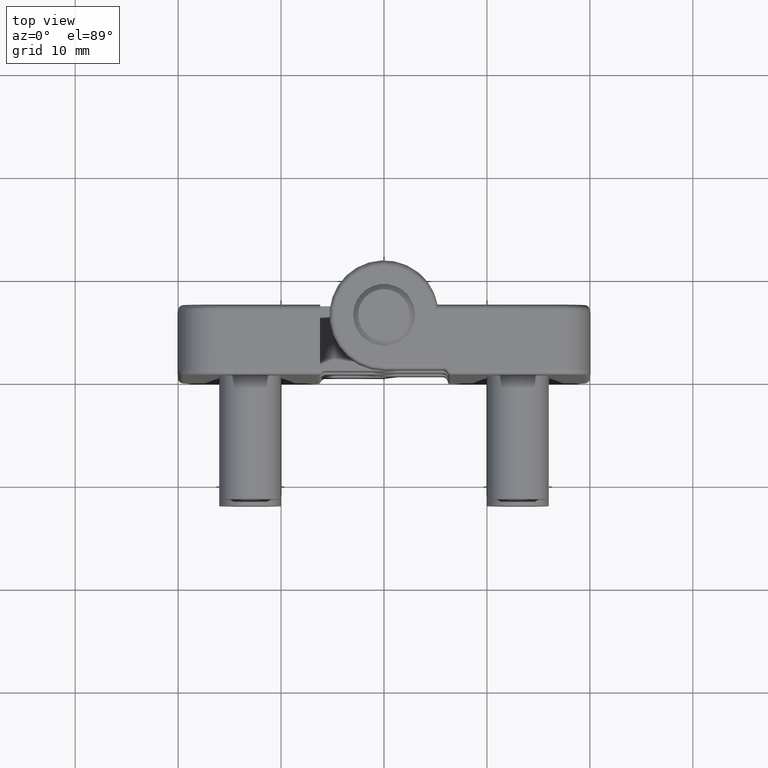
[diagram: clean part render]
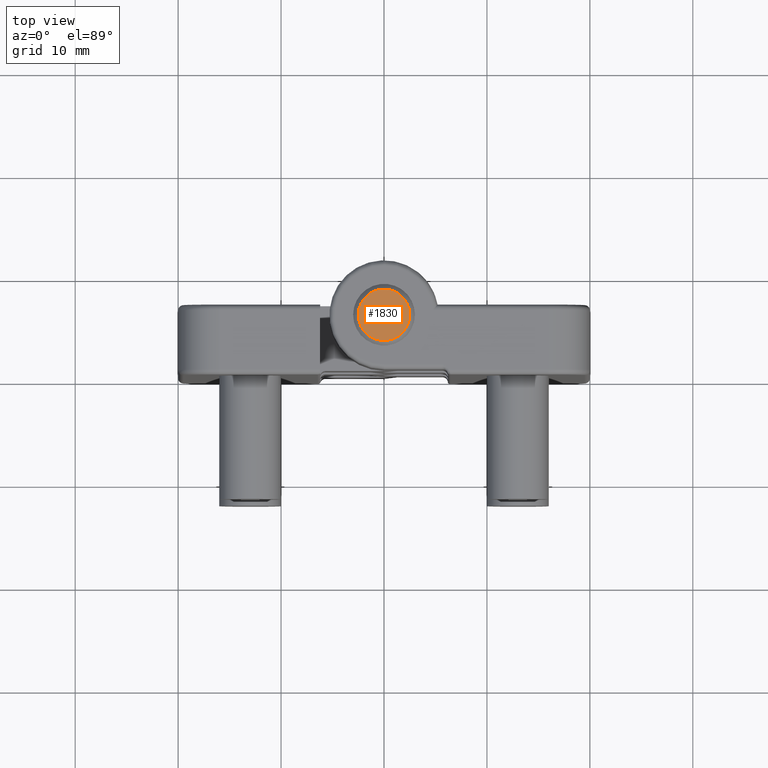
[diagram: same view with one face highlighted and labeled with its STEP entity id]
A machine part, top view. The second image highlights one B-rep face of the part: STEP entity #1830.
In plain terms, the highlighted planar face has unit normal (0, 0, -1).
Its self-contained STEP definition (entity closure, byte-faithful):
#317=PLANE('',#2058);
#474=FACE_OUTER_BOUND('',#621,.T.);
#621=EDGE_LOOP('',(#1637));
#766=CIRCLE('',#2055,2.5);
#932=VERTEX_POINT('',#3382);
#1174=EDGE_CURVE('',#932,#932,#766,.T.);
#1637=ORIENTED_EDGE('',*,*,#1174,.F.);
#1830=ADVANCED_FACE('',(#474),#317,.F.);
#2055=AXIS2_PLACEMENT_3D('',#3383,#2599,#2600);
#2058=AXIS2_PLACEMENT_3D('',#3387,#2605,#2606);
#2599=DIRECTION('center_axis',(0.,0.,1.));
#2600=DIRECTION('ref_axis',(-1.,0.,0.));
#2605=DIRECTION('center_axis',(0.,0.,1.));
#2606=DIRECTION('ref_axis',(1.,0.,0.));
#3382=CARTESIAN_POINT('',(2.5,5.8,-27.));
#3383=CARTESIAN_POINT('Origin',(-3.40610748101056E-16,5.8,-27.));
#3387=CARTESIAN_POINT('Origin',(-4.9394518056003E-16,5.8,-27.));